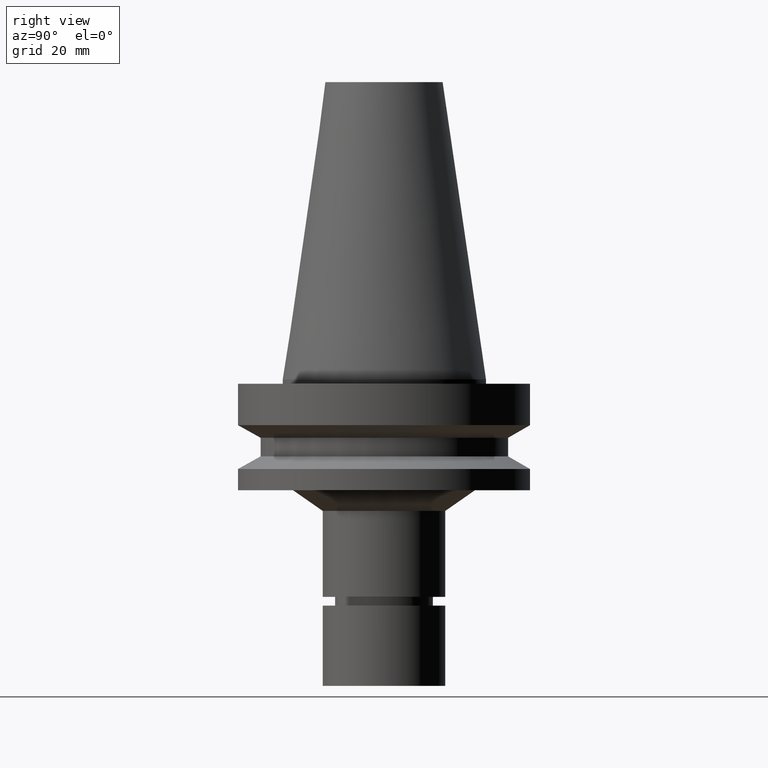
[diagram: clean part render]
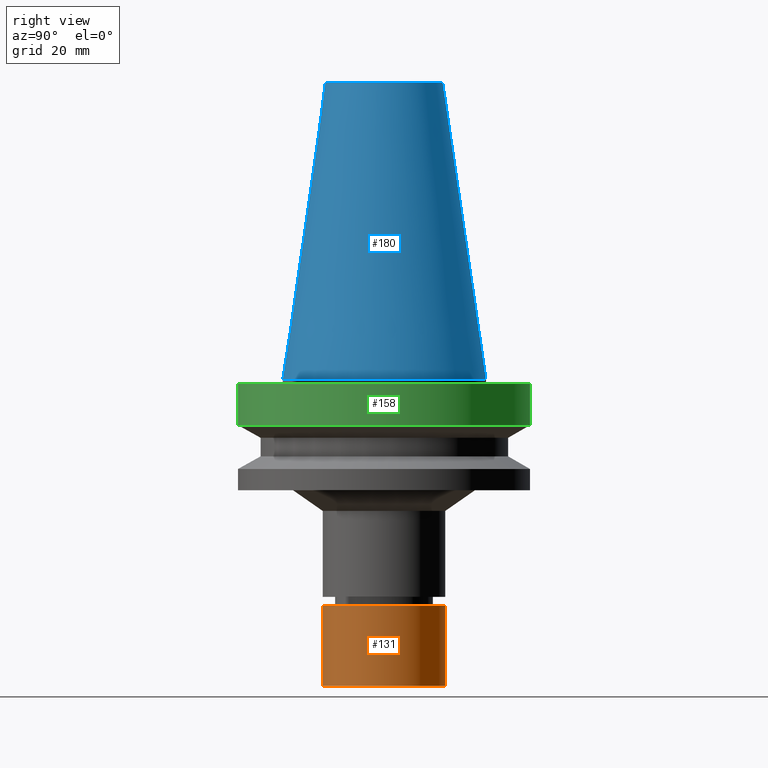
[diagram: same view with three faces highlighted in distinct colors, each labeled with its STEP entity id]
A machine part, right view with three faces highlighted in distinct colors.
Their STEP definitions:

[orange] entity #131 — the highlighted cylindrical surface (bore or boss wall) has radius 21 mm, axis along (0, -0, -1).
#100=EDGE_CURVE('Unnamed[1]',#240,#240,#241,.T.);
#131=ADVANCED_FACE('Unnamed[1]',(#286,#287),#288,.T.);
#133=EDGE_CURVE('Unnamed[1]',#290,#290,#291,.T.);
#240=VERTEX_POINT('',#426);
#241=CIRCLE('',#427,21.0);
#286=FACE_BOUND('',#485,.T.);
#287=FACE_BOUND('',#486,.T.);
#288=CYLINDRICAL_SURFACE('',#487,21.0);
#290=VERTEX_POINT('',#490);
#291=CIRCLE('',#491,21.0);
#426=CARTESIAN_POINT('',(6.4293956955236E-015,21.0,-105.0));
#427=AXIS2_PLACEMENT_3D('',#624,#625,#626);
#485=EDGE_LOOP('',(#674));
#486=EDGE_LOOP('',(#675));
#487=AXIS2_PLACEMENT_3D('',#676,#677,#678);
#490=CARTESIAN_POINT('',(4.74550634669599E-015,21.0,-77.5));
#491=AXIS2_PLACEMENT_3D('',#679,#680,#681);
#624=CARTESIAN_POINT('',(6.4293956955236E-015,1.29813967550319E-014,-105.0));
#625=DIRECTION('',(6.12323399573677E-017,-1.4068406993903E-019,-1.0));
#626=DIRECTION('',(-4.81853831597193E-033,1.0,-1.4068406993903E-019));
#674=ORIENTED_EDGE('',*,*,#100,.F.);
#675=ORIENTED_EDGE('',*,*,#133,.T.);
#676=CARTESIAN_POINT('',(5.5874510211098E-015,1.29833311609935E-014,-91.25));
#677=DIRECTION('',(6.12323399573677E-017,-1.40684069939012E-019,-1.0));
#678=DIRECTION('',(-4.81853831597193E-033,1.0,-1.40684069939012E-019));
#679=CARTESIAN_POINT('',(4.74550634669599E-015,1.29852655669552E-014,-77.5));
#680=DIRECTION('',(6.12323399573677E-017,-1.40684069939012E-019,-1.0));
#681=DIRECTION('',(-4.81853831597193E-033,1.0,-1.40684069939012E-019));

[blue] entity #180 — the highlighted conical surface has half-angle 8.297 deg.
#95=EDGE_CURVE('Unnamed[1]',#233,#233,#234,.T.);
#166=EDGE_CURVE('Unnamed[1]',#340,#340,#341,.T.);
#180=ADVANCED_FACE('Unnamed[1]',(#361,#362),#363,.T.);
#233=VERTEX_POINT('',#417);
#234=CIRCLE('',#418,20.0791666651884);
#340=VERTEX_POINT('',#550);
#341=CIRCLE('',#551,34.925);
#361=FACE_BOUND('',#576,.T.);
#362=FACE_BOUND('',#577,.T.);
#363=CONICAL_SURFACE('',#578,27.5020833325942,0.144812498253157);
#417=CARTESIAN_POINT('',(-6.23345220766003E-015,20.0791666651884,101.8));
#418=AXIS2_PLACEMENT_3D('',#616,#617,#618);
#550=CARTESIAN_POINT('',(-4.30483861169435E-031,34.925,4.27707894602213E-015));
#551=AXIS2_PLACEMENT_3D('',#732,#733,#734);
#576=EDGE_LOOP('',(#756));
#577=EDGE_LOOP('',(#757));
#578=AXIS2_PLACEMENT_3D('',#758,#759,#760);
#616=CARTESIAN_POINT('',(-6.23345220766003E-015,1.30104902206953E-014,101.8));
#617=DIRECTION('',(-6.12323399573677E-017,1.40684069939014E-019,1.0));
#618=DIRECTION('',(-4.81853831597193E-033,1.0,-1.40684069939014E-019));
#732=CARTESIAN_POINT('',(-1.6019014550465E-046,1.29961685823755E-014,1.59157162555855E-030));
#733=DIRECTION('',(-6.12323399573677E-017,1.40684069939028E-019,1.0));
#734=DIRECTION('',(-4.81853831597193E-033,1.0,-1.40684069939028E-019));
#756=ORIENTED_EDGE('',*,*,#95,.F.);
#757=ORIENTED_EDGE('',*,*,#166,.T.);
#758=CARTESIAN_POINT('',(-3.11672610383001E-015,1.30033294015354E-014,50.9));
#759=DIRECTION('',(6.12323399573677E-017,-1.40684069939016E-019,-1.0));
#760=DIRECTION('',(-4.81853831597193E-033,1.0,-1.40684069939015E-019));

[green] entity #158 — the highlighted cylindrical surface (bore or boss wall) has radius 50 mm, axis along (-0, 0, 1).
#90=EDGE_CURVE('Unnamed[1]',#225,#225,#226,.T.);
#117=EDGE_CURVE('Unnamed[1]',#266,#266,#267,.T.);
#158=ADVANCED_FACE('Unnamed[1]',(#326,#327),#328,.T.);
#225=VERTEX_POINT('',#407);
#226=CIRCLE('',#408,50.0);
#266=VERTEX_POINT('',#459);
#267=CIRCLE('',#460,50.0);
#326=FACE_BOUND('',#533,.T.);
#327=FACE_BOUND('',#534,.T.);
#328=CYLINDRICAL_SURFACE('',#535,50.0);
#407=CARTESIAN_POINT('',(9.61347737330674E-016,50.0,-15.7));
#408=AXIS2_PLACEMENT_3D('',#607,#608,#609);
#459=CARTESIAN_POINT('',(9.18485099360509E-017,50.0,-1.49999999999999));
#460=AXIS2_PLACEMENT_3D('',#653,#654,#655);
#533=EDGE_LOOP('',(#715));
#534=EDGE_LOOP('',(#716));
#535=AXIS2_PLACEMENT_3D('',#717,#718,#719);
#607=CARTESIAN_POINT('',(9.61347737330675E-016,1.29939598424774E-014,-15.7));
#608=DIRECTION('',(-6.12323399573677E-017,1.40684069939013E-019,1.0));
#609=DIRECTION('',(-4.81853831597193E-033,1.0,-1.40684069939013E-019));
#653=CARTESIAN_POINT('',(9.18485099360515E-017,1.29959575562706E-014,-1.5));
#654=DIRECTION('',(-6.12323399573677E-017,1.40684069939013E-019,1.0));
#655=DIRECTION('',(-4.81853831597193E-033,1.0,-1.40684069939013E-019));
#715=ORIENTED_EDGE('',*,*,#117,.F.);
#716=ORIENTED_EDGE('',*,*,#90,.T.);
#717=CARTESIAN_POINT('',(5.26598123633363E-016,1.2994958699374E-014,-8.60000000000002));
#718=DIRECTION('',(-6.12323399573677E-017,1.40684069939013E-019,1.0));
#719=DIRECTION('',(-4.81853831597193E-033,1.0,-1.40684069939013E-019));